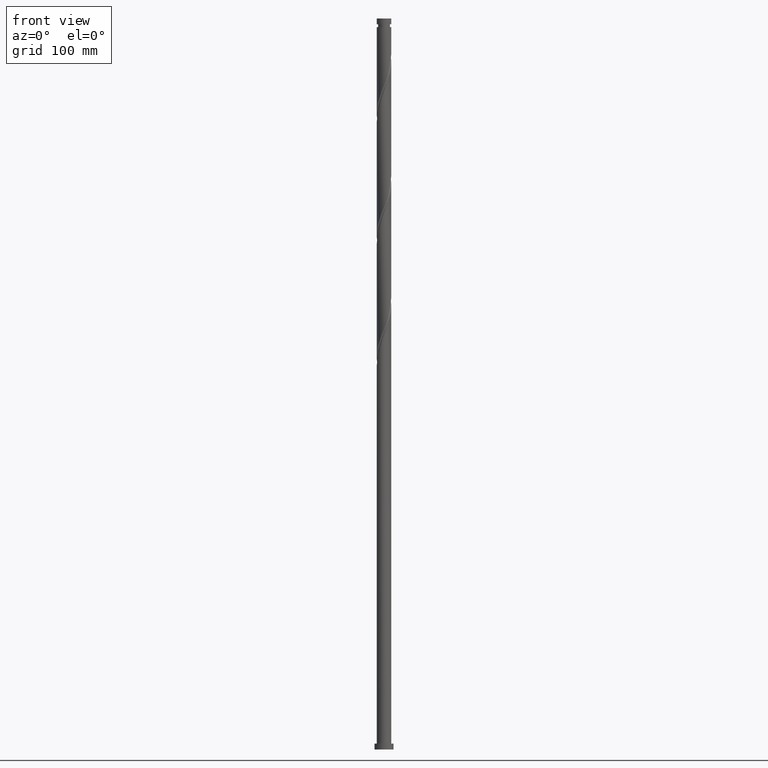
[diagram: clean part render]
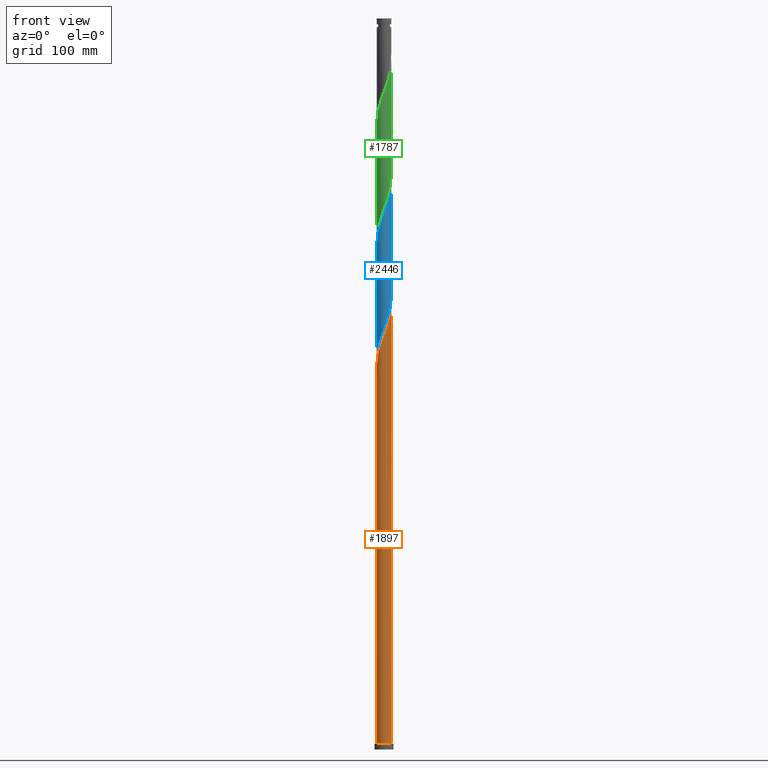
[diagram: same view with three faces highlighted in distinct colors, each labeled with its STEP entity id]
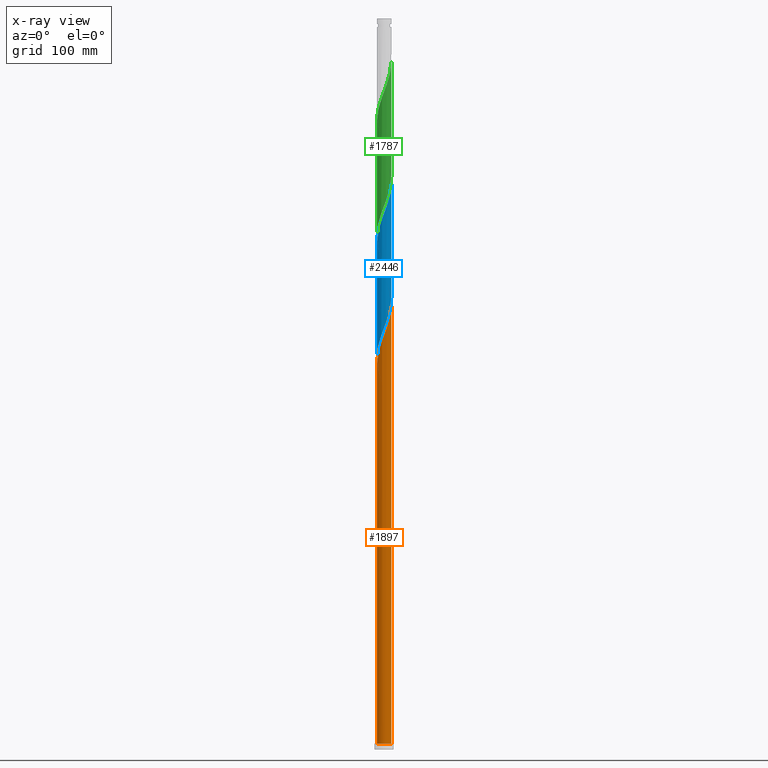
[diagram: x-ray of the same camera — body ghosted, the three highlighted faces saturated]
A machine part, front view with three faces highlighted in distinct colors.
The next image is the same camera in x-ray (body ghosted, the three faces saturated) — at least one of them is partly hidden behind the body in this view.
Their STEP definitions:

[orange] entity #1897 — the highlighted cylindrical surface (edge-blend (fillet) strip) has radius 10 mm, axis along (-0, -0, -1).
#144 = CYLINDRICAL_SURFACE ( 'NONE', #1413, 10.00000000000000178 ) ;
#164 = CARTESIAN_POINT ( 'NONE',  ( -9.956614419138704264, -1.218698147331991111, 527.8294867868128222 ) ) ;
#173 = CARTESIAN_POINT ( 'NONE',  ( -2.676026301552628883, -9.635293624659231781, 559.0794867868128222 ) ) ;
#198 = CARTESIAN_POINT ( 'NONE',  ( -6.758688661379373741, -7.370218964083912638, 546.5794867868128222 ) ) ;
#235 = DIRECTION ( 'NONE',  ( -0.000000000000000000, -0.000000000000000000, -1.000000000000000000 ) ) ;
#253 = DIRECTION ( 'NONE',  ( 0.000000000000000000, 0.000000000000000000, 1.000000000000000000 ) ) ;
#353 = CARTESIAN_POINT ( 'NONE',  ( -0.3538636994451097029, -10.02467836630812670, 565.3294867868127085 ) ) ;
#365 = DIRECTION ( 'NONE',  ( -0.000000000000000000, -0.000000000000000000, -1.000000000000000000 ) ) ;
#385 = CARTESIAN_POINT ( 'NONE',  ( 4.235813876369424413, -9.092704585021300190, 577.8294867868128222 ) ) ;
#386 = CARTESIAN_POINT ( 'NONE',  ( 10.00000000000001421, 9.552733732950904056E-15, 607.9328752480316780 ) ) ;
#518 = DIRECTION ( 'NONE',  ( -1.000000000000000000, 0.000000000000000000, 0.000000000000000000 ) ) ;
#527 = CARTESIAN_POINT ( 'NONE',  ( -1.917712247535583892, -9.845901462098996859, 561.1628201201461934 ) ) ;
#547 = CARTESIAN_POINT ( 'NONE',  ( 2.761251601094514285, -9.643385580861325579, 573.6628201201463071 ) ) ;
#553 = VERTEX_POINT ( 'NONE', #386 ) ;
#557 = DIRECTION ( 'NONE',  ( -0.000000000000000000, -0.000000000000000000, -1.000000000000000000 ) ) ;
#637 = CARTESIAN_POINT ( 'NONE',  ( -10.00000000000000178, 0.000000000000000000, 1000.000000000000000 ) ) ;
#714 = CARTESIAN_POINT ( 'NONE',  ( -9.800000000000013145, -1.989974874213252809, 529.9128201201460797 ) ) ;
#716 = CARTESIAN_POINT ( 'NONE',  ( 0.000000000000000000, 0.000000000000000000, 1000.000000000000000 ) ) ;
#730 = CARTESIAN_POINT ( 'NONE',  ( -9.368045082941311108, -3.498532738731970682, 534.0794867868127085 ) ) ;
#740 = CARTESIAN_POINT ( 'NONE',  ( -8.318131025341649831, -5.606076356147837281, 540.3294867868129359 ) ) ;
#750 = CARTESIAN_POINT ( 'NONE',  ( -4.866403606127476245, -8.771403069519758233, 552.8294867868127085 ) ) ;
#761 = CARTESIAN_POINT ( 'NONE',  ( 9.424685787219473809, -3.434340355569672543, 598.6628201201461934 ) ) ;
#784 = VERTEX_POINT ( 'NONE', #2353 ) ;
#798 = VERTEX_POINT ( 'NONE', #1226 ) ;
#834 = ORIENTED_EDGE ( 'NONE', *, *, #902, .T. ) ;
#849 = DIRECTION ( 'NONE',  ( 1.000000000000000000, 0.000000000000000000, 0.000000000000000000 ) ) ;
#883 = FACE_OUTER_BOUND ( 'NONE', #1352, .T. ) ;
#902 = EDGE_CURVE ( 'NONE', #798, #784, #1524, .T. ) ;
#916 = CARTESIAN_POINT ( 'NONE',  ( 9.098044428369609804, -4.150371980848575504, 596.5794867868128222 ) ) ;
#929 = CARTESIAN_POINT ( 'NONE',  ( 6.222187493342497433, -7.828434249432799419, 584.0794867868125948 ) ) ;
#953 = CARTESIAN_POINT ( 'NONE',  ( -3.434340355569674319, -9.424685787219470257, 556.9961534534794509 ) ) ;
#1098 = CARTESIAN_POINT ( 'NONE',  ( 7.370218964083912638, -6.758688661379373741, 588.2461534534794509 ) ) ;
#1109 = CARTESIAN_POINT ( 'NONE',  ( 8.771403069519756457, -4.866403606127479797, 594.4961534534796783 ) ) ;
#1118 = CARTESIAN_POINT ( 'NONE',  ( -7.338737473523952559, -6.838298630537162914, 544.4961534534795646 ) ) ;
#1128 = CARTESIAN_POINT ( 'NONE',  ( 0.4324172239434403431, -9.990646392723411040, 567.4128201201464208 ) ) ;
#1179 = LINE ( 'NONE', #637, #1372 ) ;
#1226 = CARTESIAN_POINT ( 'NONE',  ( -10.00000000000000178, 0.000000000000000000, 8.000000000000000000 ) ) ;
#1298 = CARTESIAN_POINT ( 'NONE',  ( -1.135787973490346436, -9.935289914203563555, 563.2461534534795646 ) ) ;
#1345 = CARTESIAN_POINT ( 'NONE',  ( 3.498532738731969349, -9.368045082941311108, 575.7461534534794509 ) ) ;
#1352 = EDGE_LOOP ( 'NONE', ( #1576, #2113, #1502, #834 ) ) ;
#1372 = VECTOR ( 'NONE', #235, 1000.000000000000000 ) ;
#1413 = AXIS2_PLACEMENT_3D ( 'NONE', #716, #365, #518 ) ;
#1482 = CARTESIAN_POINT ( 'NONE',  ( -9.092704585021300190, -4.235813876369424413, 536.1628201201463071 ) ) ;
#1488 = VECTOR ( 'NONE', #557, 1000.000000000000000 ) ;
#1495 = CARTESIAN_POINT ( 'NONE',  ( -7.828434249432799419, -6.222187493342498321, 542.4128201201461934 ) ) ;
#1502 = ORIENTED_EDGE ( 'NONE', *, *, #2078, .T. ) ;
#1506 = CARTESIAN_POINT ( 'NONE',  ( 7.902139297630667691, -6.178639849234802028, 590.3294867868129359 ) ) ;
#1517 = CARTESIAN_POINT ( 'NONE',  ( 6.838298630537161138, -7.338737473523952559, 586.1628201201461934 ) ) ;
#1524 = CIRCLE ( 'NONE', #2401, 10.00000000000000178 ) ;
#1529 =( BOUNDED_CURVE ( )  B_SPLINE_CURVE ( 2, ( #2455, #2056, #2421, #164, #714, #1669, #730, #1482, #2442, #740, #1495, #1118, #198, #2245, #2234, #750, #1867, #953, #173, #527, #1298, #353, #1128, #1876, #1699, #547, #1345, #385, #2090, #2047, #929, #1517, #1098, #1506, #2064, #1109, #916, #761, #1856, #1680, #2266, #2431, #1848 ),
 .UNSPECIFIED., .F., .T. ) 
 B_SPLINE_CURVE_WITH_KNOTS ( ( 3, 2, 2, 2, 2, 2, 2, 2, 2, 2, 2, 2, 2, 2, 2, 2, 2, 2, 2, 2, 2, 3 ),
 ( 0.05452835374107316280, 0.05625000000000002220, 0.06250000000000000000, 0.06874999999999997780, 0.07499999999999995559, 0.08125000000000004441, 0.08750000000000002220, 0.09375000000000000000, 0.09999999999999997780, 0.1062499999999999556, 0.1125000000000000444, 0.1187500000000000222, 0.1250000000000000000, 0.1312499999999999778, 0.1374999999999999556, 0.1437500000000000444, 0.1500000000000000222, 0.1562500000000000000, 0.1624999999999999778, 0.1687499999999999556, 0.1750000000000000444, 0.1795283537410735653 ),
 .UNSPECIFIED. ) 
 CURVE ( )  GEOMETRIC_REPRESENTATION_ITEM ( )  RATIONAL_B_SPLINE_CURVE ( ( 0.9079722749903020862, 0.9083189438770123969, 0.9090909090909586876, 0.9062884852119839074, 0.9090909090909586876, 0.9062884852119839074, 0.9090909090909586876, 0.9062884852119839074, 0.9090909090909586876, 0.9062884852119839074, 0.9090909090909586876, 0.9062884852119839074, 0.9090909090909586876, 0.9062884852119839074, 0.9090909090909586876, 0.9062884852119839074, 0.9090909090909586876, 0.9062884852119839074, 0.9090909090909586876, 0.9062884852119839074, 0.9090909090909586876, 0.9062884852119839074, 0.9090909090909586876, 0.9062884852119839074, 0.9090909090909586876, 0.9062884852119839074, 0.9090909090909586876, 0.9062884852119839074, 0.9090909090909586876, 0.9062884852119839074, 0.9090909090909586876, 0.9062884852119839074, 0.9090909090909586876, 0.9062884852119839074, 0.9090909090909586876, 0.9062884852119839074, 0.9090909090909586876, 0.9062884852119839074, 0.9090909090909586876, 0.9062884852119839074, 0.9090909090909586876, 0.9070604504259299761, 0.9079722749903023082 ) ) 
 REPRESENTATION_ITEM ( '' )  );
#1576 = ORIENTED_EDGE ( 'NONE', *, *, #2382, .F. ) ;
#1669 = CARTESIAN_POINT ( 'NONE',  ( -9.643385580861325579, -2.761251601094514285, 531.9961534534795646 ) ) ;
#1680 = CARTESIAN_POINT ( 'NONE',  ( 9.845901462098996859, -1.917712247535588332, 602.8294867868128222 ) ) ;
#1689 = LINE ( 'NONE', #2255, #1488 ) ;
#1699 = CARTESIAN_POINT ( 'NONE',  ( 1.989974874213251699, -9.800000000000013145, 571.5794867868128222 ) ) ;
#1780 = CARTESIAN_POINT ( 'NONE',  ( 0.000000000000000000, 0.000000000000000000, 8.000000000000000000 ) ) ;
#1848 = CARTESIAN_POINT ( 'NONE',  ( 10.00000000000001421, 9.552733732950904056E-15, 607.9328752480316780 ) ) ;
#1856 = CARTESIAN_POINT ( 'NONE',  ( 9.635293624659231781, -2.676026301552629771, 600.7461534534793373 ) ) ;
#1867 = CARTESIAN_POINT ( 'NONE',  ( -4.150371980848575504, -9.098044428369609804, 554.9128201201460797 ) ) ;
#1876 = CARTESIAN_POINT ( 'NONE',  ( 1.218698147331990445, -9.956614419138704264, 569.4961534534793373 ) ) ;
#1897 = ADVANCED_FACE ( 'NONE', ( #883 ), #144, .T. ) ;
#1910 = VERTEX_POINT ( 'NONE', #2211 ) ;
#2047 = CARTESIAN_POINT ( 'NONE',  ( 5.606076356147837281, -8.318131025341651608, 581.9961534534794509 ) ) ;
#2056 = CARTESIAN_POINT ( 'NONE',  ( -10.00000000000001599, -0.2163097758063378118, 525.1735542247644162 ) ) ;
#2064 = CARTESIAN_POINT ( 'NONE',  ( 8.336771183575212518, -5.522521727681138692, 592.4128201201460797 ) ) ;
#2078 = EDGE_CURVE ( 'NONE', #1910, #798, #1179, .T. ) ;
#2090 = CARTESIAN_POINT ( 'NONE',  ( 4.920945116258630847, -8.705417805181475899, 579.9128201201460797 ) ) ;
#2113 = ORIENTED_EDGE ( 'NONE', *, *, #2358, .F. ) ;
#2211 = CARTESIAN_POINT ( 'NONE',  ( -10.00000000000001599, -9.254210803796187220E-15, 524.5995419146980794 ) ) ;
#2234 = CARTESIAN_POINT ( 'NONE',  ( -5.522521727681138692, -8.336771183575212518, 550.7461534534792236 ) ) ;
#2245 = CARTESIAN_POINT ( 'NONE',  ( -6.178639849234801140, -7.902139297630667691, 548.6628201201461934 ) ) ;
#2255 = CARTESIAN_POINT ( 'NONE',  ( 10.00000000000000178, 1.224646799147353454E-15, 1000.000000000000000 ) ) ;
#2266 = CARTESIAN_POINT ( 'NONE',  ( 9.935289914203563555, -1.135787973490346658, 604.9128201201460797 ) ) ;
#2353 = CARTESIAN_POINT ( 'NONE',  ( 10.00000000000000178, 1.224646799147353454E-15, 8.000000000000000000 ) ) ;
#2358 = EDGE_CURVE ( 'NONE', #1910, #553, #1529, .T. ) ;
#2382 = EDGE_CURVE ( 'NONE', #553, #784, #1689, .T. ) ;
#2401 = AXIS2_PLACEMENT_3D ( 'NONE', #1780, #253, #849 ) ;
#2421 = CARTESIAN_POINT ( 'NONE',  ( -9.990646392723412816, -0.4324172239434413423, 525.7461534534794509 ) ) ;
#2431 = CARTESIAN_POINT ( 'NONE',  ( 10.00000000000001954, -0.5697373744643041693, 606.4209867296866605 ) ) ;
#2442 = CARTESIAN_POINT ( 'NONE',  ( -8.705417805181475899, -4.920945116258630847, 538.2461534534793373 ) ) ;
#2455 = CARTESIAN_POINT ( 'NONE',  ( -10.00000000000001599, -9.254210803796187220E-15, 524.5995419146980794 ) ) ;

[blue] entity #2446 — the highlighted cylindrical surface (edge-blend (fillet) strip) has radius 10 mm, axis along (-0, -0, -1).
#42 = CARTESIAN_POINT ( 'NONE',  ( 6.178639849234786929, -7.902139297630664139, 594.4961534534795646 ) ) ;
#71 = EDGE_CURVE ( 'NONE', #1757, #1512, #418, .T. ) ;
#101 = CARTESIAN_POINT ( 'NONE',  ( -10.00000000000000355, 6.770500033228993565E-14, 535.2260983255939664 ) ) ;
#108 = CARTESIAN_POINT ( 'NONE',  ( -0.4324172239434441178, -9.990646392723402158, 575.7461534534795646 ) ) ;
#139 = VERTEX_POINT ( 'NONE', #430 ) ;
#143 = CARTESIAN_POINT ( 'NONE',  ( 5.606076356147837281, -8.318131025341651608, 748.6628201201461934 ) ) ;
#151 = CARTESIAN_POINT ( 'NONE',  ( -9.990646392723412816, -0.4324172239434413423, 692.4128201201461934 ) ) ;
#163 = CARTESIAN_POINT ( 'NONE',  ( -9.643385580861325579, -2.761251601094514285, 698.6628201201460797 ) ) ;
#205 = FACE_OUTER_BOUND ( 'NONE', #1467, .T. ) ;
#243 =( BOUNDED_CURVE ( )  B_SPLINE_CURVE ( 2, ( #895, #713, #151, #1087, #1659, #163, #535, #1668, #2412, #2033, #1263, #1866, #1838, #871, #1481, #352, #1108, #1855, #1471, #1075, #2210, #915, #1638, #1827, #340, #526, #507, #2420, #1297, #143, #2046, #1309, #1679, #729, #1494, #2244, #2055, #1321, #556, #1153, #1332, #422, #2441 ),
 .UNSPECIFIED., .F., .T. ) 
 B_SPLINE_CURVE_WITH_KNOTS ( ( 3, 2, 2, 2, 2, 2, 2, 2, 2, 2, 2, 2, 2, 2, 2, 2, 2, 2, 2, 2, 2, 3 ),
 ( 0.3045283537410736208, 0.3062500000000000222, 0.3125000000000000000, 0.3187499999999999778, 0.3249999999999999556, 0.3312500000000000444, 0.3375000000000000222, 0.3437500000000000000, 0.3499999999999999778, 0.3562499999999999556, 0.3625000000000000444, 0.3687500000000000222, 0.3750000000000000000, 0.3812499999999999778, 0.3874999999999999556, 0.3937500000000000444, 0.4000000000000000222, 0.4062500000000000000, 0.4124999999999999778, 0.4187499999999999556, 0.4250000000000000444, 0.4295283537410736208 ),
 .UNSPECIFIED. ) 
 CURVE ( )  GEOMETRIC_REPRESENTATION_ITEM ( )  RATIONAL_B_SPLINE_CURVE ( ( 0.9079722749903023082, 0.9083189438770126189, 0.9090909090909586876, 0.9062884852119839074, 0.9090909090909586876, 0.9062884852119839074, 0.9090909090909586876, 0.9062884852119839074, 0.9090909090909586876, 0.9062884852119839074, 0.9090909090909586876, 0.9062884852119839074, 0.9090909090909586876, 0.9062884852119839074, 0.9090909090909586876, 0.9062884852119839074, 0.9090909090909586876, 0.9062884852119839074, 0.9090909090909586876, 0.9062884852119839074, 0.9090909090909586876, 0.9062884852119839074, 0.9090909090909586876, 0.9062884852119839074, 0.9090909090909586876, 0.9062884852119839074, 0.9090909090909586876, 0.9062884852119839074, 0.9090909090909586876, 0.9062884852119839074, 0.9090909090909586876, 0.9062884852119839074, 0.9090909090909586876, 0.9062884852119839074, 0.9090909090909586876, 0.9062884852119839074, 0.9090909090909586876, 0.9062884852119839074, 0.9090909090909586876, 0.9062884852119839074, 0.9090909090909586876, 0.9070604504259299761, 0.9079722749903023082 ) ) 
 REPRESENTATION_ITEM ( '' )  );
#266 = CARTESIAN_POINT ( 'NONE',  ( -6.838298630537155809, -7.338737473523941901, 556.9961534534795646 ) ) ;
#284 = CARTESIAN_POINT ( 'NONE',  ( -8.771403069519749351, -4.866403606127465586, 548.6628201201461934 ) ) ;
#297 = CARTESIAN_POINT ( 'NONE',  ( -9.424685787219459598, -3.434340355569668546, 544.4961534534796783 ) ) ;
#314 = CARTESIAN_POINT ( 'NONE',  ( -10.00000000000000355, 6.770500033228993565E-14, 535.2260983255939664 ) ) ;
#340 = CARTESIAN_POINT ( 'NONE',  ( 1.989974874213251699, -9.800000000000013145, 738.2461534534794509 ) ) ;
#342 = CARTESIAN_POINT ( 'NONE',  ( -3.498532738731968905, -9.368045082941298674, 567.4128201201463071 ) ) ;
#351 = ORIENTED_EDGE ( 'NONE', *, *, #2404, .F. ) ;
#352 = CARTESIAN_POINT ( 'NONE',  ( -4.866403606127476245, -8.771403069519758233, 719.4961534534793373 ) ) ;
#381 = EDGE_CURVE ( 'NONE', #139, #1512, #2388, .T. ) ;
#391 = CYLINDRICAL_SURFACE ( 'NONE', #1998, 10.00000000000000178 ) ;
#414 = VECTOR ( 'NONE', #606, 1000.000000000000000 ) ;
#418 = LINE ( 'NONE', #987, #2344 ) ;
#422 = CARTESIAN_POINT ( 'NONE',  ( 10.00000000000001954, -0.5697373744642971749, 773.0876533963534030 ) ) ;
#427 = CARTESIAN_POINT ( 'NONE',  ( 5.522521727681127146, -8.336771183575205413, 592.4128201201461934 ) ) ;
#430 = CARTESIAN_POINT ( 'NONE',  ( 10.00000000000000355, 1.298574741823021473E-14, 618.5594316589274513 ) ) ;
#507 = CARTESIAN_POINT ( 'NONE',  ( 3.498532738731969349, -9.368045082941311108, 742.4128201201461934 ) ) ;
#510 = CARTESIAN_POINT ( 'NONE',  ( 1.135787973490341329, -9.935289914203547568, 579.9128201201461934 ) ) ;
#526 = CARTESIAN_POINT ( 'NONE',  ( 2.761251601094514285, -9.643385580861325579, 740.3294867868129359 ) ) ;
#535 = CARTESIAN_POINT ( 'NONE',  ( -9.368045082941311108, -3.498532738731970682, 700.7461534534794509 ) ) ;
#556 = CARTESIAN_POINT ( 'NONE',  ( 9.635293624659231781, -2.676026301552629771, 767.4128201201461934 ) ) ;
#606 = DIRECTION ( 'NONE',  ( -0.000000000000000000, -0.000000000000000000, -1.000000000000000000 ) ) ;
#645 = CARTESIAN_POINT ( 'NONE',  ( -7.370218964083908197, -6.758688661379363971, 554.9128201201460797 ) ) ;
#703 = CARTESIAN_POINT ( 'NONE',  ( 0.3538636994451051510, -10.02467836630811249, 577.8294867868130495 ) ) ;
#713 = CARTESIAN_POINT ( 'NONE',  ( -10.00000000000001599, -0.2163097758063953768, 691.8402208914313860 ) ) ;
#729 = CARTESIAN_POINT ( 'NONE',  ( 7.902139297630667691, -6.178639849234802028, 756.9961534534794509 ) ) ;
#753 = CARTESIAN_POINT ( 'NONE',  ( 2.676026301552623110, -9.635293624659222900, 584.0794867868129359 ) ) ;
#795 = CARTESIAN_POINT ( 'NONE',  ( 8.318131025341633844, -5.606076356147837281, 602.8294867868129359 ) ) ;
#814 = ORIENTED_EDGE ( 'NONE', *, *, #71, .T. ) ;
#871 = CARTESIAN_POINT ( 'NONE',  ( -6.178639849234801140, -7.902139297630667691, 715.3294867868130495 ) ) ;
#895 = CARTESIAN_POINT ( 'NONE',  ( -10.00000000000001599, -9.254210803796187220E-15, 691.2662085813649355 ) ) ;
#915 = CARTESIAN_POINT ( 'NONE',  ( -0.3538636994451097029, -10.02467836630812670, 731.9961534534795646 ) ) ;
#957 = CARTESIAN_POINT ( 'NONE',  ( 8.705417805181461688, -4.920945116258629071, 604.9128201201461934 ) ) ;
#961 = CARTESIAN_POINT ( 'NONE',  ( 0.000000000000000000, 0.000000000000000000, 1000.000000000000000 ) ) ;
#965 = CARTESIAN_POINT ( 'NONE',  ( 10.00000000000001421, 9.552733732950904056E-15, 774.5995419146984204 ) ) ;
#987 = CARTESIAN_POINT ( 'NONE',  ( -10.00000000000000178, 0.000000000000000000, 1000.000000000000000 ) ) ;
#1065 = CARTESIAN_POINT ( 'NONE',  ( -6.222187493342492992, -7.828434249432788761, 559.0794867868128222 ) ) ;
#1075 = CARTESIAN_POINT ( 'NONE',  ( -1.917712247535583892, -9.845901462098996859, 727.8294867868129359 ) ) ;
#1087 = CARTESIAN_POINT ( 'NONE',  ( -9.956614419138704264, -1.218698147331991111, 694.4961534534794509 ) ) ;
#1100 = CARTESIAN_POINT ( 'NONE',  ( -4.235813876369423525, -9.092704585021285979, 565.3294867868128222 ) ) ;
#1108 = CARTESIAN_POINT ( 'NONE',  ( -4.150371980848575504, -9.098044428369609804, 721.5794867868127085 ) ) ;
#1145 = CARTESIAN_POINT ( 'NONE',  ( 1.917712247535578118, -9.845901462098986201, 581.9961534534794509 ) ) ;
#1153 = CARTESIAN_POINT ( 'NONE',  ( 9.845901462098996859, -1.917712247535588332, 769.4961534534793373 ) ) ;
#1187 = CARTESIAN_POINT ( 'NONE',  ( 4.866403606127465586, -8.771403069519749351, 590.3294867868129359 ) ) ;
#1188 = EDGE_CURVE ( 'NONE', #1757, #1364, #243, .T. ) ;
#1209 = CARTESIAN_POINT ( 'NONE',  ( 9.956614419138690053, -1.218698147331989112, 615.3294867868128222 ) ) ;
#1233 = CARTESIAN_POINT ( 'NONE',  ( -7.902139297630660586, -6.178639849234791370, 552.8294867868128222 ) ) ;
#1252 = CARTESIAN_POINT ( 'NONE',  ( -5.606076356147832840, -8.318131025341637397, 561.1628201201461934 ) ) ;
#1263 = CARTESIAN_POINT ( 'NONE',  ( -7.828434249432799419, -6.222187493342498321, 709.0794867868128222 ) ) ;
#1297 = CARTESIAN_POINT ( 'NONE',  ( 4.920945116258630847, -8.705417805181475899, 746.5794867868127085 ) ) ;
#1309 = CARTESIAN_POINT ( 'NONE',  ( 6.838298630537161138, -7.338737473523952559, 752.8294867868127085 ) ) ;
#1321 = CARTESIAN_POINT ( 'NONE',  ( 9.424685787219473809, -3.434340355569672543, 765.3294867868128222 ) ) ;
#1332 = CARTESIAN_POINT ( 'NONE',  ( 9.935289914203563555, -1.135787973490346658, 771.5794867868127085 ) ) ;
#1364 = VERTEX_POINT ( 'NONE', #965 ) ;
#1379 = DIRECTION ( 'NONE',  ( -0.000000000000000000, -0.000000000000000000, -1.000000000000000000 ) ) ;
#1400 = CARTESIAN_POINT ( 'NONE',  ( 10.00000000000000533, -0.2163097758063652898, 617.9854193488612282 ) ) ;
#1446 = CARTESIAN_POINT ( 'NONE',  ( -9.935289914203547568, -1.135787973490341995, 538.2461534534793373 ) ) ;
#1467 = EDGE_LOOP ( 'NONE', ( #351, #2037, #814, #2453 ) ) ;
#1471 = CARTESIAN_POINT ( 'NONE',  ( -2.676026301552628883, -9.635293624659231781, 725.7461534534793373 ) ) ;
#1473 = CARTESIAN_POINT ( 'NONE',  ( -1.218698147331993109, -9.956614419138690053, 573.6628201201459660 ) ) ;
#1481 = CARTESIAN_POINT ( 'NONE',  ( -5.522521727681138692, -8.336771183575212518, 717.4128201201459660 ) ) ;
#1494 = CARTESIAN_POINT ( 'NONE',  ( 8.336771183575212518, -5.522521727681138692, 759.0794867868125948 ) ) ;
#1512 = VERTEX_POINT ( 'NONE', #101 ) ;
#1536 = CARTESIAN_POINT ( 'NONE',  ( 9.643385580861311368, -2.761251601094518726, 611.1628201201461934 ) ) ;
#1586 = CARTESIAN_POINT ( 'NONE',  ( 10.00000000000000355, 1.298574741823021473E-14, 618.5594316589274513 ) ) ;
#1634 = CARTESIAN_POINT ( 'NONE',  ( -9.845901462098982648, -1.917712247535578785, 540.3294867868128222 ) ) ;
#1638 = CARTESIAN_POINT ( 'NONE',  ( 0.4324172239434403431, -9.990646392723411040, 734.0794867868127085 ) ) ;
#1659 = CARTESIAN_POINT ( 'NONE',  ( -9.800000000000013145, -1.989974874213252809, 696.5794867868130495 ) ) ;
#1668 = CARTESIAN_POINT ( 'NONE',  ( -9.092704585021300190, -4.235813876369424413, 702.8294867868129359 ) ) ;
#1679 = CARTESIAN_POINT ( 'NONE',  ( 7.370218964083912638, -6.758688661379373741, 754.9128201201461934 ) ) ;
#1702 = CARTESIAN_POINT ( 'NONE',  ( 3.434340355569667214, -9.424685787219459598, 586.1628201201463071 ) ) ;
#1713 = CARTESIAN_POINT ( 'NONE',  ( 4.150371980848566622, -9.098044428369604475, 588.2461534534795646 ) ) ;
#1718 = DIRECTION ( 'NONE',  ( -1.000000000000000000, 0.000000000000000000, 0.000000000000000000 ) ) ;
#1744 = DIRECTION ( 'NONE',  ( -0.000000000000000000, -0.000000000000000000, -1.000000000000000000 ) ) ;
#1757 = VERTEX_POINT ( 'NONE', #2418 ) ;
#1827 = CARTESIAN_POINT ( 'NONE',  ( 1.218698147331990445, -9.956614419138704264, 736.1628201201460797 ) ) ;
#1838 = CARTESIAN_POINT ( 'NONE',  ( -6.758688661379373741, -7.370218964083912638, 713.2461534534794509 ) ) ;
#1855 = CARTESIAN_POINT ( 'NONE',  ( -3.434340355569674319, -9.424685787219470257, 723.6628201201463071 ) ) ;
#1866 = CARTESIAN_POINT ( 'NONE',  ( -7.338737473523952559, -6.838298630537162914, 711.1628201201463071 ) ) ;
#1921 = CARTESIAN_POINT ( 'NONE',  ( 6.758688661379363971, -7.370218964083908197, 596.5794867868128222 ) ) ;
#1961 = CARTESIAN_POINT ( 'NONE',  ( 9.799999999999997158, -1.989974874213254141, 613.2461534534796783 ) ) ;
#1982 = CARTESIAN_POINT ( 'NONE',  ( -8.336771183575205413, -5.522521727681128034, 550.7461534534794509 ) ) ;
#1998 = AXIS2_PLACEMENT_3D ( 'NONE', #961, #1379, #1718 ) ;
#2006 = CARTESIAN_POINT ( 'NONE',  ( -10.00000000000000355, -0.5697373744642887372, 536.7379868439388702 ) ) ;
#2033 = CARTESIAN_POINT ( 'NONE',  ( -8.318131025341649831, -5.606076356147837281, 706.9961534534793373 ) ) ;
#2036 = CARTESIAN_POINT ( 'NONE',  ( -2.761251601094515173, -9.643385580861311368, 569.4961534534792236 ) ) ;
#2037 = ORIENTED_EDGE ( 'NONE', *, *, #1188, .F. ) ;
#2046 = CARTESIAN_POINT ( 'NONE',  ( 6.222187493342497433, -7.828434249432799419, 750.7461534534793373 ) ) ;
#2055 = CARTESIAN_POINT ( 'NONE',  ( 9.098044428369609804, -4.150371980848575504, 763.2461534534794509 ) ) ;
#2081 = CARTESIAN_POINT ( 'NONE',  ( 7.338737473523944566, -6.838298630537154033, 598.6628201201464208 ) ) ;
#2095 = CARTESIAN_POINT ( 'NONE',  ( 7.828434249432788761, -6.222187493342493880, 600.7461534534792236 ) ) ;
#2122 = CARTESIAN_POINT ( 'NONE',  ( 9.092704585021287755, -4.235813876369419084, 606.9961534534796783 ) ) ;
#2148 = CARTESIAN_POINT ( 'NONE',  ( 9.990646392723402158, -0.4324172239434446174, 617.4128201201460797 ) ) ;
#2189 = CARTESIAN_POINT ( 'NONE',  ( -4.920945116258628182, -8.705417805181461688, 563.2461534534795646 ) ) ;
#2196 = CARTESIAN_POINT ( 'NONE',  ( -9.635293624659222900, -2.676026301552623554, 542.4128201201463071 ) ) ;
#2210 = CARTESIAN_POINT ( 'NONE',  ( -1.135787973490346436, -9.935289914203563555, 729.9128201201461934 ) ) ;
#2225 = CARTESIAN_POINT ( 'NONE',  ( -1.989974874213253697, -9.799999999999997158, 571.5794867868129359 ) ) ;
#2244 = CARTESIAN_POINT ( 'NONE',  ( 8.771403069519756457, -4.866403606127479797, 761.1628201201460797 ) ) ;
#2274 = LINE ( 'NONE', #2332, #414 ) ;
#2284 = CARTESIAN_POINT ( 'NONE',  ( 9.368045082941296897, -3.498532738731969349, 609.0794867868128222 ) ) ;
#2332 = CARTESIAN_POINT ( 'NONE',  ( 10.00000000000000178, 1.224646799147353454E-15, 1000.000000000000000 ) ) ;
#2344 = VECTOR ( 'NONE', #1744, 1000.000000000000000 ) ;
#2376 = CARTESIAN_POINT ( 'NONE',  ( -9.098044428369604475, -4.150371980848566622, 546.5794867868128222 ) ) ;
#2388 =( BOUNDED_CURVE ( )  B_SPLINE_CURVE ( 2, ( #1586, #1400, #2148, #1209, #1961, #1536, #2284, #2122, #957, #795, #2095, #2081, #1921, #42, #427, #1187, #1713, #1702, #753, #1145, #510, #703, #108, #1473, #2225, #2036, #342, #1100, #2189, #1252, #1065, #266, #645, #1233, #1982, #284, #2376, #297, #2196, #1634, #1446, #2006, #314 ),
 .UNSPECIFIED., .F., .T. ) 
 B_SPLINE_CURVE_WITH_KNOTS ( ( 3, 2, 2, 2, 2, 2, 2, 2, 2, 2, 2, 2, 2, 2, 2, 2, 2, 2, 2, 2, 2, 3 ),
 ( 0.8045283537410733432, 0.8062500000000000222, 0.8125000000000000000, 0.8187499999999999778, 0.8249999999999999556, 0.8312500000000000444, 0.8375000000000000222, 0.8437500000000000000, 0.8499999999999999778, 0.8562499999999999556, 0.8625000000000000444, 0.8687500000000000222, 0.8750000000000000000, 0.8812499999999999778, 0.8874999999999999556, 0.8937500000000000444, 0.9000000000000000222, 0.9062500000000000000, 0.9124999999999999778, 0.9187499999999999556, 0.9250000000000000444, 0.9295283537410736763 ),
 .UNSPECIFIED. ) 
 CURVE ( )  GEOMETRIC_REPRESENTATION_ITEM ( )  RATIONAL_B_SPLINE_CURVE ( ( 0.9079722749902967571, 0.9083189438770070678, 0.9090909090909532475, 0.9062884852119784673, 0.9090909090909532475, 0.9062884852119784673, 0.9090909090909532475, 0.9062884852119784673, 0.9090909090909532475, 0.9062884852119784673, 0.9090909090909532475, 0.9062884852119784673, 0.9090909090909532475, 0.9062884852119784673, 0.9090909090909532475, 0.9062884852119784673, 0.9090909090909532475, 0.9062884852119784673, 0.9090909090909532475, 0.9062884852119784673, 0.9090909090909532475, 0.9062884852119784673, 0.9090909090909532475, 0.9062884852119784673, 0.9090909090909532475, 0.9062884852119784673, 0.9090909090909532475, 0.9062884852119784673, 0.9090909090909532475, 0.9062884852119784673, 0.9090909090909532475, 0.9062884852119784673, 0.9090909090909532475, 0.9062884852119784673, 0.9090909090909532475, 0.9062884852119784673, 0.9090909090909532475, 0.9062884852119784673, 0.9090909090909532475, 0.9062884852119784673, 0.9090909090909532475, 0.9070604504259245360, 0.9079722749902968681 ) ) 
 REPRESENTATION_ITEM ( '' )  );
#2404 = EDGE_CURVE ( 'NONE', #1364, #139, #2274, .T. ) ;
#2412 = CARTESIAN_POINT ( 'NONE',  ( -8.705417805181475899, -4.920945116258630847, 704.9128201201459660 ) ) ;
#2418 = CARTESIAN_POINT ( 'NONE',  ( -10.00000000000001599, -9.254210803796187220E-15, 691.2662085813649355 ) ) ;
#2420 = CARTESIAN_POINT ( 'NONE',  ( 4.235813876369424413, -9.092704585021300190, 744.4961534534795646 ) ) ;
#2441 = CARTESIAN_POINT ( 'NONE',  ( 10.00000000000001421, 9.552733732950904056E-15, 774.5995419146984204 ) ) ;
#2446 = ADVANCED_FACE ( 'NONE', ( #205 ), #391, .T. ) ;
#2453 = ORIENTED_EDGE ( 'NONE', *, *, #381, .F. ) ;

[green] entity #1787 — the highlighted cylindrical surface (edge-blend (fillet) strip) has radius 10 mm, axis along (-0, -0, -1).
#50 = CARTESIAN_POINT ( 'NONE',  ( 3.434340355569667214, -9.424685787219459598, 752.8294867868128222 ) ) ;
#67 = CARTESIAN_POINT ( 'NONE',  ( -3.434340355569674319, -9.424685787219470257, 890.3294867868128222 ) ) ;
#76 = CARTESIAN_POINT ( 'NONE',  ( 6.758688661379363971, -7.370218964083908197, 763.2461534534794509 ) ) ;
#79 = CARTESIAN_POINT ( 'NONE',  ( -10.00000000000001776, 8.657164945486758477E-16, 857.9328752480315643 ) ) ;
#86 = CARTESIAN_POINT ( 'NONE',  ( 1.917712247535578118, -9.845901462098986201, 748.6628201201464208 ) ) ;
#92 = VERTEX_POINT ( 'NONE', #605 ) ;
#106 = CARTESIAN_POINT ( 'NONE',  ( -9.990646392723412816, -0.4324172239434413423, 859.0794867868128222 ) ) ;
#118 = CARTESIAN_POINT ( 'NONE',  ( 6.222187493342497433, -7.828434249432799419, 917.4128201201459660 ) ) ;
#129 = CYLINDRICAL_SURFACE ( 'NONE', #1959, 10.00000000000000178 ) ;
#162 = VERTEX_POINT ( 'NONE', #1526 ) ;
#236 = CARTESIAN_POINT ( 'NONE',  ( 5.522521727681127146, -8.336771183575205413, 759.0794867868128222 ) ) ;
#249 = CARTESIAN_POINT ( 'NONE',  ( 4.866403606127465586, -8.771403069519749351, 756.9961534534794509 ) ) ;
#261 = CARTESIAN_POINT ( 'NONE',  ( 9.368045082941296897, -3.498532738731969349, 775.7461534534796783 ) ) ;
#273 = CARTESIAN_POINT ( 'NONE',  ( 1.135787973490341329, -9.935289914203547568, 746.5794867868128222 ) ) ;
#277 = CARTESIAN_POINT ( 'NONE',  ( -1.917712247535583892, -9.845901462098996859, 894.4961534534795646 ) ) ;
#285 = CARTESIAN_POINT ( 'NONE',  ( -6.838298630537155809, -7.338737473523941901, 723.6628201201461934 ) ) ;
#288 = CARTESIAN_POINT ( 'NONE',  ( -10.00000000000000178, 0.000000000000000000, 1000.000000000000000 ) ) ;
#305 = CARTESIAN_POINT ( 'NONE',  ( 4.235813876369424413, -9.092704585021300190, 911.1628201201461934 ) ) ;
#436 = CARTESIAN_POINT ( 'NONE',  ( 8.705417805181461688, -4.920945116258629071, 771.5794867868128222 ) ) ;
#451 = CARTESIAN_POINT ( 'NONE',  ( -10.00000000000001599, -0.2163097758063744214, 858.5068875580979011 ) ) ;
#464 = CARTESIAN_POINT ( 'NONE',  ( -8.318131025341649831, -5.606076356147837281, 873.6628201201460797 ) ) ;
#467 = EDGE_CURVE ( 'NONE', #1571, #995, #941, .T. ) ;
#473 = CARTESIAN_POINT ( 'NONE',  ( -5.606076356147832840, -8.318131025341637397, 727.8294867868129359 ) ) ;
#476 = CARTESIAN_POINT ( 'NONE',  ( 4.920945116258630847, -8.705417805181475899, 913.2461534534793373 ) ) ;
#485 = CARTESIAN_POINT ( 'NONE',  ( 9.990646392723402158, -0.4324172239434446174, 784.0794867868128222 ) ) ;
#489 = CARTESIAN_POINT ( 'NONE',  ( -4.866403606127476245, -8.771403069519758233, 886.1628201201459660 ) ) ;
#496 = CARTESIAN_POINT ( 'NONE',  ( -7.902139297630660586, -6.178639849234791370, 719.4961534534795646 ) ) ;
#517 = CARTESIAN_POINT ( 'NONE',  ( 9.424685787219473809, -3.434340355569672543, 931.9961534534795646 ) ) ;
#605 = CARTESIAN_POINT ( 'NONE',  ( -10.00000000000000355, 9.555718962242508133E-14, 701.8927649922605951 ) ) ;
#613 = CARTESIAN_POINT ( 'NONE',  ( 8.336771183575212518, -5.522521727681138692, 925.7461534534794509 ) ) ;
#638 = CARTESIAN_POINT ( 'NONE',  ( 7.828434249432788761, -6.222187493342493880, 767.4128201201460797 ) ) ;
#653 = CARTESIAN_POINT ( 'NONE',  ( -3.498532738731968905, -9.368045082941298674, 734.0794867868130495 ) ) ;
#657 = CARTESIAN_POINT ( 'NONE',  ( -7.828434249432799419, -6.222187493342498321, 875.7461534534794509 ) ) ;
#677 = CARTESIAN_POINT ( 'NONE',  ( -10.00000000000000355, 9.555718962242508133E-14, 701.8927649922605951 ) ) ;
#698 = CARTESIAN_POINT ( 'NONE',  ( -9.424685787219459598, -3.434340355569668546, 711.1628201201461934 ) ) ;
#804 = CARTESIAN_POINT ( 'NONE',  ( 9.956614419138690053, -1.218698147331989112, 781.9961534534795646 ) ) ;
#811 = ORIENTED_EDGE ( 'NONE', *, *, #1519, .F. ) ;
#823 = CARTESIAN_POINT ( 'NONE',  ( 1.989974874213251699, -9.800000000000013145, 904.9128201201461934 ) ) ;
#832 = CARTESIAN_POINT ( 'NONE',  ( 2.676026301552623110, -9.635293624659222900, 750.7461534534794509 ) ) ;
#837 = CARTESIAN_POINT ( 'NONE',  ( -9.800000000000013145, -1.989974874213252809, 863.2461534534793373 ) ) ;
#845 = CARTESIAN_POINT ( 'NONE',  ( -1.989974874213253697, -9.799999999999997158, 738.2461534534795646 ) ) ;
#868 = FACE_OUTER_BOUND ( 'NONE', #973, .T. ) ;
#873 = EDGE_CURVE ( 'NONE', #162, #92, #1962, .T. ) ;
#879 = CARTESIAN_POINT ( 'NONE',  ( 10.00000000000001776, -5.074889795630168865E-16, 941.2662085813650492 ) ) ;
#941 = LINE ( 'NONE', #1700, #1758 ) ;
#973 = EDGE_LOOP ( 'NONE', ( #1129, #1094, #1160, #811 ) ) ;
#992 = CARTESIAN_POINT ( 'NONE',  ( 4.150371980848566622, -9.098044428369604475, 754.9128201201463071 ) ) ;
#995 = VERTEX_POINT ( 'NONE', #1614 ) ;
#1006 = EDGE_CURVE ( 'NONE', #162, #1571, #1026, .T. ) ;
#1023 = CARTESIAN_POINT ( 'NONE',  ( 9.092704585021287755, -4.235813876369419084, 773.6628201201463071 ) ) ;
#1026 =( BOUNDED_CURVE ( )  B_SPLINE_CURVE ( 2, ( #79, #451, #106, #1626, #837, #1211, #2149, #1414, #1768, #464, #657, #1438, #1986, #1974, #2380, #489, #2368, #67, #1999, #277, #1042, #1401, #1792, #1426, #823, #1587, #2175, #305, #476, #1817, #118, #1237, #1574, #2327, #613, #2136, #1117, #517, #1847, #2392, #2402, #1648, #1450 ),
 .UNSPECIFIED., .F., .T. ) 
 B_SPLINE_CURVE_WITH_KNOTS ( ( 3, 2, 2, 2, 2, 2, 2, 2, 2, 2, 2, 2, 2, 2, 2, 2, 2, 2, 2, 2, 2, 3 ),
 ( 0.5545283537410734542, 0.5562500000000000222, 0.5625000000000000000, 0.5687499999999999778, 0.5749999999999999556, 0.5812500000000000444, 0.5875000000000000222, 0.5937500000000000000, 0.5999999999999999778, 0.6062499999999999556, 0.6125000000000000444, 0.6187500000000000222, 0.6250000000000000000, 0.6312499999999999778, 0.6374999999999999556, 0.6437500000000000444, 0.6500000000000000222, 0.6562500000000000000, 0.6624999999999999778, 0.6687499999999999556, 0.6750000000000000444, 0.6795283537410736763 ),
 .UNSPECIFIED. ) 
 CURVE ( )  GEOMETRIC_REPRESENTATION_ITEM ( )  RATIONAL_B_SPLINE_CURVE ( ( 0.9079722749903023082, 0.9083189438770126189, 0.9090909090909586876, 0.9062884852119839074, 0.9090909090909586876, 0.9062884852119839074, 0.9090909090909586876, 0.9062884852119839074, 0.9090909090909586876, 0.9062884852119839074, 0.9090909090909586876, 0.9062884852119839074, 0.9090909090909586876, 0.9062884852119839074, 0.9090909090909586876, 0.9062884852119839074, 0.9090909090909586876, 0.9062884852119839074, 0.9090909090909586876, 0.9062884852119839074, 0.9090909090909586876, 0.9062884852119839074, 0.9090909090909586876, 0.9062884852119839074, 0.9090909090909586876, 0.9062884852119839074, 0.9090909090909586876, 0.9062884852119839074, 0.9090909090909586876, 0.9062884852119839074, 0.9090909090909586876, 0.9062884852119839074, 0.9090909090909586876, 0.9062884852119839074, 0.9090909090909586876, 0.9062884852119839074, 0.9090909090909586876, 0.9062884852119839074, 0.9090909090909586876, 0.9062884852119839074, 0.9090909090909586876, 0.9070604504259298650, 0.9079722749903021972 ) ) 
 REPRESENTATION_ITEM ( '' )  );
#1027 = DIRECTION ( 'NONE',  ( -0.000000000000000000, -0.000000000000000000, -1.000000000000000000 ) ) ;
#1042 = CARTESIAN_POINT ( 'NONE',  ( -1.135787973490346436, -9.935289914203563555, 896.5794867868125948 ) ) ;
#1061 = CARTESIAN_POINT ( 'NONE',  ( -7.370218964083908197, -6.758688661379363971, 721.5794867868127085 ) ) ;
#1094 = ORIENTED_EDGE ( 'NONE', *, *, #1006, .F. ) ;
#1117 = CARTESIAN_POINT ( 'NONE',  ( 9.098044428369609804, -4.150371980848575504, 929.9128201201458523 ) ) ;
#1124 = VECTOR ( 'NONE', #1027, 1000.000000000000000 ) ;
#1129 = ORIENTED_EDGE ( 'NONE', *, *, #467, .F. ) ;
#1131 = DIRECTION ( 'NONE',  ( -0.000000000000000000, -0.000000000000000000, -1.000000000000000000 ) ) ;
#1160 = ORIENTED_EDGE ( 'NONE', *, *, #873, .T. ) ;
#1195 = CARTESIAN_POINT ( 'NONE',  ( 8.318131025341633844, -5.606076356147837281, 769.4961534534796783 ) ) ;
#1211 = CARTESIAN_POINT ( 'NONE',  ( -9.643385580861325579, -2.761251601094514285, 865.3294867868130495 ) ) ;
#1237 = CARTESIAN_POINT ( 'NONE',  ( 6.838298630537161138, -7.338737473523952559, 919.4961534534793373 ) ) ;
#1260 = CARTESIAN_POINT ( 'NONE',  ( 0.000000000000000000, 0.000000000000000000, 1000.000000000000000 ) ) ;
#1285 = CARTESIAN_POINT ( 'NONE',  ( -8.336771183575205413, -5.522521727681128034, 717.4128201201461934 ) ) ;
#1294 =( BOUNDED_CURVE ( )  B_SPLINE_CURVE ( 2, ( #1749, #2377, #485, #804, #2131, #1957, #261, #1023, #436, #1195, #638, #1434, #76, #1931, #236, #249, #992, #50, #832, #86, #273, #2349, #2159, #1569, #845, #2364, #653, #1423, #2171, #473, #1983, #285, #1061, #496, #1285, #2031, #1845, #698, #1491, #2231, #2242, #1468, #677 ),
 .UNSPECIFIED., .F., .T. ) 
 B_SPLINE_CURVE_WITH_KNOTS ( ( 3, 2, 2, 2, 2, 2, 2, 2, 2, 2, 2, 2, 2, 2, 2, 2, 2, 2, 2, 2, 2, 3 ),
 ( 0.5545283537410735653, 0.5562500000000000222, 0.5625000000000000000, 0.5687499999999999778, 0.5749999999999999556, 0.5812500000000000444, 0.5875000000000000222, 0.5937500000000000000, 0.5999999999999999778, 0.6062499999999999556, 0.6125000000000000444, 0.6187500000000000222, 0.6250000000000000000, 0.6312499999999999778, 0.6374999999999999556, 0.6437500000000000444, 0.6500000000000000222, 0.6562500000000000000, 0.6624999999999999778, 0.6687499999999999556, 0.6750000000000000444, 0.6795283537410736763 ),
 .UNSPECIFIED. ) 
 CURVE ( )  GEOMETRIC_REPRESENTATION_ITEM ( )  RATIONAL_B_SPLINE_CURVE ( ( 0.9079722749902967571, 0.9083189438770071789, 0.9090909090909532475, 0.9062884852119784673, 0.9090909090909532475, 0.9062884852119784673, 0.9090909090909532475, 0.9062884852119784673, 0.9090909090909532475, 0.9062884852119784673, 0.9090909090909532475, 0.9062884852119784673, 0.9090909090909532475, 0.9062884852119784673, 0.9090909090909532475, 0.9062884852119784673, 0.9090909090909532475, 0.9062884852119784673, 0.9090909090909532475, 0.9062884852119784673, 0.9090909090909532475, 0.9062884852119784673, 0.9090909090909532475, 0.9062884852119784673, 0.9090909090909532475, 0.9062884852119784673, 0.9090909090909532475, 0.9062884852119784673, 0.9090909090909532475, 0.9062884852119784673, 0.9090909090909532475, 0.9062884852119784673, 0.9090909090909532475, 0.9062884852119784673, 0.9090909090909532475, 0.9062884852119784673, 0.9090909090909532475, 0.9062884852119784673, 0.9090909090909532475, 0.9062884852119784673, 0.9090909090909532475, 0.9070604504259245360, 0.9079722749902968681 ) ) 
 REPRESENTATION_ITEM ( '' )  );
#1401 = CARTESIAN_POINT ( 'NONE',  ( -0.3538636994451097029, -10.02467836630812670, 898.6628201201461934 ) ) ;
#1414 = CARTESIAN_POINT ( 'NONE',  ( -9.092704585021300190, -4.235813876369424413, 869.4961534534794509 ) ) ;
#1423 = CARTESIAN_POINT ( 'NONE',  ( -4.235813876369423525, -9.092704585021285979, 731.9961534534795646 ) ) ;
#1426 = CARTESIAN_POINT ( 'NONE',  ( 1.218698147331990445, -9.956614419138704264, 902.8294867868129359 ) ) ;
#1434 = CARTESIAN_POINT ( 'NONE',  ( 7.338737473523944566, -6.838298630537154033, 765.3294867868129359 ) ) ;
#1438 = CARTESIAN_POINT ( 'NONE',  ( -7.338737473523952559, -6.838298630537162914, 877.8294867868127085 ) ) ;
#1450 = CARTESIAN_POINT ( 'NONE',  ( 10.00000000000001776, -5.074889795630169851E-16, 941.2662085813650492 ) ) ;
#1468 = CARTESIAN_POINT ( 'NONE',  ( -10.00000000000000355, -0.5697373744642887372, 703.4046535106056126 ) ) ;
#1491 = CARTESIAN_POINT ( 'NONE',  ( -9.635293624659222900, -2.676026301552623554, 709.0794867868129359 ) ) ;
#1519 = EDGE_CURVE ( 'NONE', #995, #92, #1294, .T. ) ;
#1526 = CARTESIAN_POINT ( 'NONE',  ( -10.00000000000001776, 8.657164945486758477E-16, 857.9328752480316780 ) ) ;
#1569 = CARTESIAN_POINT ( 'NONE',  ( -1.218698147331993109, -9.956614419138690053, 740.3294867868129359 ) ) ;
#1571 = VERTEX_POINT ( 'NONE', #879 ) ;
#1574 = CARTESIAN_POINT ( 'NONE',  ( 7.370218964083912638, -6.758688661379373741, 921.5794867868128222 ) ) ;
#1587 = CARTESIAN_POINT ( 'NONE',  ( 2.761251601094514285, -9.643385580861325579, 906.9961534534793373 ) ) ;
#1614 = CARTESIAN_POINT ( 'NONE',  ( 10.00000000000000355, 1.298574741823021473E-14, 785.2260983255941937 ) ) ;
#1626 = CARTESIAN_POINT ( 'NONE',  ( -9.956614419138704264, -1.218698147331991111, 861.1628201201460797 ) ) ;
#1648 = CARTESIAN_POINT ( 'NONE',  ( 10.00000000000002132, -0.5697373744642902915, 939.7543200630198044 ) ) ;
#1700 = CARTESIAN_POINT ( 'NONE',  ( 10.00000000000000178, 1.224646799147353454E-15, 1000.000000000000000 ) ) ;
#1749 = CARTESIAN_POINT ( 'NONE',  ( 10.00000000000000355, 1.298574741823021473E-14, 785.2260983255941937 ) ) ;
#1758 = VECTOR ( 'NONE', #1131, 1000.000000000000000 ) ;
#1768 = CARTESIAN_POINT ( 'NONE',  ( -8.705417805181475899, -4.920945116258630847, 871.5794867868128222 ) ) ;
#1787 = ADVANCED_FACE ( 'NONE', ( #868 ), #129, .T. ) ;
#1792 = CARTESIAN_POINT ( 'NONE',  ( 0.4324172239434403431, -9.990646392723411040, 900.7461534534795646 ) ) ;
#1817 = CARTESIAN_POINT ( 'NONE',  ( 5.606076356147837281, -8.318131025341651608, 915.3294867868129359 ) ) ;
#1845 = CARTESIAN_POINT ( 'NONE',  ( -9.098044428369604475, -4.150371980848566622, 713.2461534534796783 ) ) ;
#1847 = CARTESIAN_POINT ( 'NONE',  ( 9.635293624659231781, -2.676026301552629771, 934.0794867868127085 ) ) ;
#1931 = CARTESIAN_POINT ( 'NONE',  ( 6.178639849234786929, -7.902139297630664139, 761.1628201201459660 ) ) ;
#1957 = CARTESIAN_POINT ( 'NONE',  ( 9.643385580861311368, -2.761251601094518726, 777.8294867868127085 ) ) ;
#1959 = AXIS2_PLACEMENT_3D ( 'NONE', #1260, #1995, #2208 ) ;
#1962 = LINE ( 'NONE', #288, #1124 ) ;
#1974 = CARTESIAN_POINT ( 'NONE',  ( -6.178639849234801140, -7.902139297630667691, 881.9961534534794509 ) ) ;
#1983 = CARTESIAN_POINT ( 'NONE',  ( -6.222187493342492992, -7.828434249432788761, 725.7461534534795646 ) ) ;
#1986 = CARTESIAN_POINT ( 'NONE',  ( -6.758688661379373741, -7.370218964083912638, 879.9128201201460797 ) ) ;
#1995 = DIRECTION ( 'NONE',  ( -0.000000000000000000, -0.000000000000000000, -1.000000000000000000 ) ) ;
#1999 = CARTESIAN_POINT ( 'NONE',  ( -2.676026301552628883, -9.635293624659231781, 892.4128201201459660 ) ) ;
#2031 = CARTESIAN_POINT ( 'NONE',  ( -8.771403069519749351, -4.866403606127465586, 715.3294867868129359 ) ) ;
#2131 = CARTESIAN_POINT ( 'NONE',  ( 9.799999999999997158, -1.989974874213254141, 779.9128201201460797 ) ) ;
#2136 = CARTESIAN_POINT ( 'NONE',  ( 8.771403069519756457, -4.866403606127479797, 927.8294867868127085 ) ) ;
#2149 = CARTESIAN_POINT ( 'NONE',  ( -9.368045082941311108, -3.498532738731970682, 867.4128201201460797 ) ) ;
#2159 = CARTESIAN_POINT ( 'NONE',  ( -0.4324172239434441178, -9.990646392723402158, 742.4128201201460797 ) ) ;
#2171 = CARTESIAN_POINT ( 'NONE',  ( -4.920945116258628182, -8.705417805181461688, 729.9128201201461934 ) ) ;
#2175 = CARTESIAN_POINT ( 'NONE',  ( 3.498532738731969349, -9.368045082941311108, 909.0794867868128222 ) ) ;
#2208 = DIRECTION ( 'NONE',  ( -1.000000000000000000, 0.000000000000000000, 0.000000000000000000 ) ) ;
#2231 = CARTESIAN_POINT ( 'NONE',  ( -9.845901462098982648, -1.917712247535578785, 706.9961534534794509 ) ) ;
#2242 = CARTESIAN_POINT ( 'NONE',  ( -9.935289914203547568, -1.135787973490341995, 704.9128201201464208 ) ) ;
#2327 = CARTESIAN_POINT ( 'NONE',  ( 7.902139297630667691, -6.178639849234802028, 923.6628201201461934 ) ) ;
#2349 = CARTESIAN_POINT ( 'NONE',  ( 0.3538636994451051510, -10.02467836630811249, 744.4961534534796783 ) ) ;
#2364 = CARTESIAN_POINT ( 'NONE',  ( -2.761251601094515173, -9.643385580861311368, 736.1628201201463071 ) ) ;
#2368 = CARTESIAN_POINT ( 'NONE',  ( -4.150371980848575504, -9.098044428369609804, 888.2461534534795646 ) ) ;
#2377 = CARTESIAN_POINT ( 'NONE',  ( 10.00000000000000178, -0.2163097758063932396, 784.6520860155277433 ) ) ;
#2380 = CARTESIAN_POINT ( 'NONE',  ( -5.522521727681138692, -8.336771183575212518, 884.0794867868127085 ) ) ;
#2392 = CARTESIAN_POINT ( 'NONE',  ( 9.845901462098996859, -1.917712247535588332, 936.1628201201458523 ) ) ;
#2402 = CARTESIAN_POINT ( 'NONE',  ( 9.935289914203563555, -1.135787973490346658, 938.2461534534793373 ) ) ;